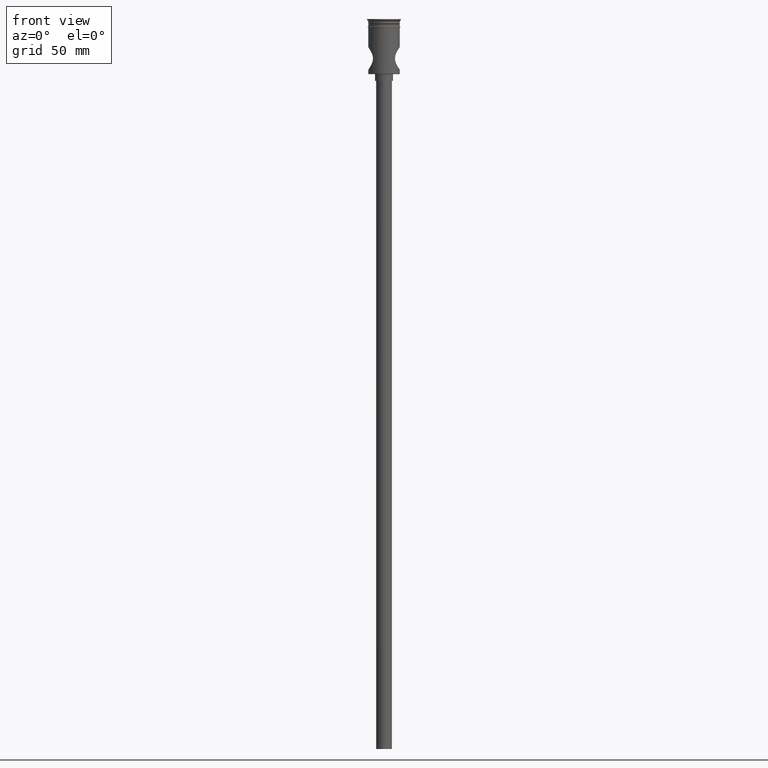
[diagram: clean part render]
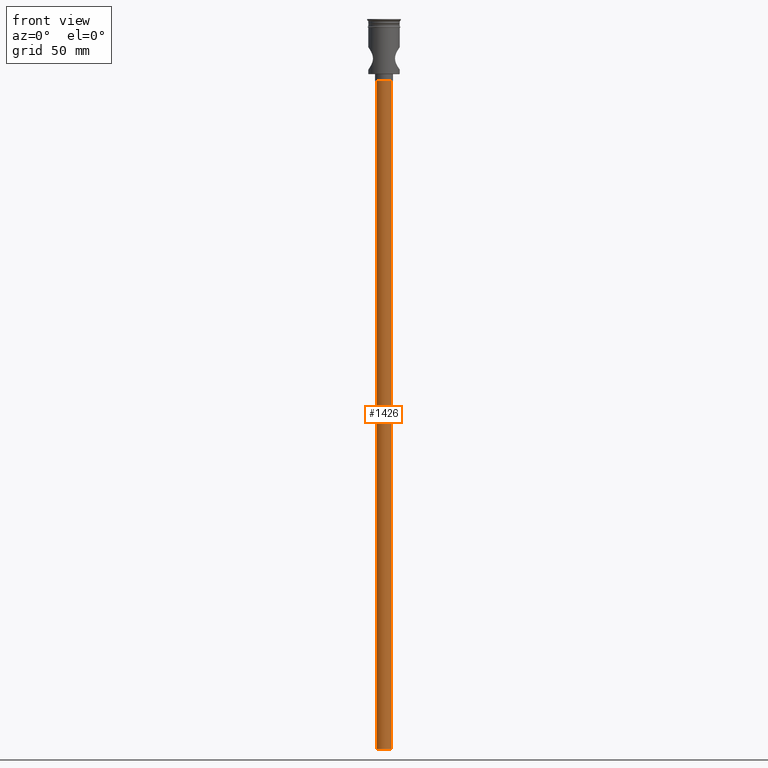
[diagram: same view with one face highlighted and labeled with its STEP entity id]
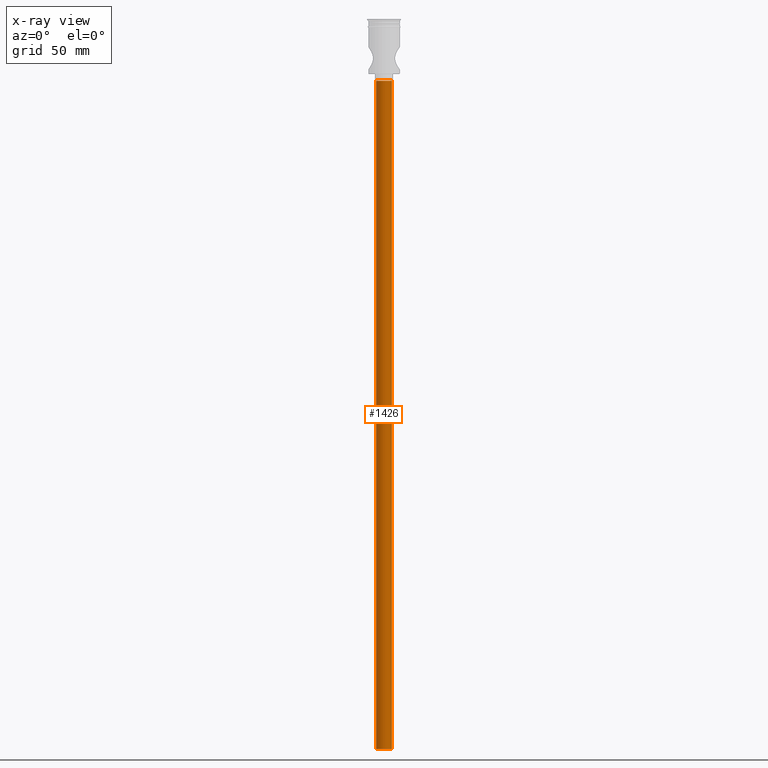
[diagram: x-ray of the same camera — body ghosted, the highlighted face saturated]
A machine part, front view. The second image highlights one B-rep face of the part: STEP entity #1426.
The next image is the same camera in x-ray: the body ghosted, the highlighted face saturated — about 0% of this face is hidden behind the body in this view.
In plain terms, the highlighted cylindrical surface (edge-blend (fillet) strip) has radius 3.5 mm, axis along (-0, -0, 1).
Its self-contained STEP definition (entity closure, byte-faithful):
#48 = EDGE_LOOP ( 'NONE', ( #777, #1349, #1235, #434 ) ) ;
#112 = CARTESIAN_POINT ( 'NONE',  ( -3.500000000000000444, 4.286263797015737088E-16, -324.5000000000000000 ) ) ;
#245 = CIRCLE ( 'NONE', #1125, 3.500000000000000444 ) ;
#261 = DIRECTION ( 'NONE',  ( -0.000000000000000000, -0.000000000000000000, 1.000000000000000000 ) ) ;
#262 = DIRECTION ( 'NONE',  ( 0.000000000000000000, 0.000000000000000000, -1.000000000000000000 ) ) ;
#266 = VERTEX_POINT ( 'NONE', #946 ) ;
#268 = CARTESIAN_POINT ( 'NONE',  ( 0.000000000000000000, 0.000000000000000000, -27.50000000000000000 ) ) ;
#316 = DIRECTION ( 'NONE',  ( 0.000000000000000000, 0.000000000000000000, -1.000000000000000000 ) ) ;
#378 = VERTEX_POINT ( 'NONE', #511 ) ;
#434 = ORIENTED_EDGE ( 'NONE', *, *, #1133, .T. ) ;
#435 = CARTESIAN_POINT ( 'NONE',  ( 3.500000000000000444, 0.000000000000000000, -27.50000000000000000 ) ) ;
#458 = LINE ( 'NONE', #112, #790 ) ;
#496 = LINE ( 'NONE', #1231, #930 ) ;
#511 = CARTESIAN_POINT ( 'NONE',  ( -3.500000000000000444, 4.286263797015737088E-16, -324.5000000000000000 ) ) ;
#550 = CARTESIAN_POINT ( 'NONE',  ( 0.000000000000000000, 0.000000000000000000, -324.5000000000000000 ) ) ;
#572 = DIRECTION ( 'NONE',  ( -0.000000000000000000, -0.000000000000000000, 1.000000000000000000 ) ) ;
#645 = AXIS2_PLACEMENT_3D ( 'NONE', #550, #572, #1475 ) ;
#770 = VERTEX_POINT ( 'NONE', #435 ) ;
#777 = ORIENTED_EDGE ( 'NONE', *, *, #992, .F. ) ;
#787 = CIRCLE ( 'NONE', #1270, 3.500000000000000444 ) ;
#790 = VECTOR ( 'NONE', #1043, 1000.000000000000000 ) ;
#804 = FACE_OUTER_BOUND ( 'NONE', #48, .T. ) ;
#816 = CARTESIAN_POINT ( 'NONE',  ( 3.500000000000000444, 0.000000000000000000, -324.5000000000000000 ) ) ;
#869 = EDGE_CURVE ( 'NONE', #897, #378, #787, .T. ) ;
#897 = VERTEX_POINT ( 'NONE', #816 ) ;
#930 = VECTOR ( 'NONE', #261, 1000.000000000000000 ) ;
#946 = CARTESIAN_POINT ( 'NONE',  ( -3.500000000000000444, 4.286263797015737088E-16, -27.50000000000000000 ) ) ;
#992 = EDGE_CURVE ( 'NONE', #378, #266, #458, .T. ) ;
#1043 = DIRECTION ( 'NONE',  ( -0.000000000000000000, -0.000000000000000000, 1.000000000000000000 ) ) ;
#1125 = AXIS2_PLACEMENT_3D ( 'NONE', #268, #262, #1206 ) ;
#1133 = EDGE_CURVE ( 'NONE', #770, #266, #245, .T. ) ;
#1206 = DIRECTION ( 'NONE',  ( -1.000000000000000000, 0.000000000000000000, 0.000000000000000000 ) ) ;
#1231 = CARTESIAN_POINT ( 'NONE',  ( 3.500000000000000444, 0.000000000000000000, -324.5000000000000000 ) ) ;
#1235 = ORIENTED_EDGE ( 'NONE', *, *, #1355, .T. ) ;
#1270 = AXIS2_PLACEMENT_3D ( 'NONE', #1489, #316, #1473 ) ;
#1349 = ORIENTED_EDGE ( 'NONE', *, *, #869, .F. ) ;
#1355 = EDGE_CURVE ( 'NONE', #897, #770, #496, .T. ) ;
#1361 = CYLINDRICAL_SURFACE ( 'NONE', #645, 3.500000000000000444 ) ;
#1426 = ADVANCED_FACE ( 'NONE', ( #804 ), #1361, .T. ) ;
#1473 = DIRECTION ( 'NONE',  ( -1.000000000000000000, 0.000000000000000000, 0.000000000000000000 ) ) ;
#1475 = DIRECTION ( 'NONE',  ( 1.000000000000000000, 0.000000000000000000, 0.000000000000000000 ) ) ;
#1489 = CARTESIAN_POINT ( 'NONE',  ( 0.000000000000000000, 0.000000000000000000, -324.5000000000000000 ) ) ;